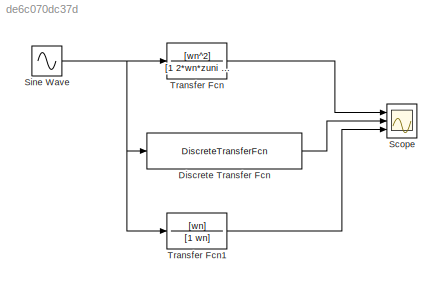
MODEL slx_de6c070dc37d
KIND model
CONFIG AbsTol = auto
CONFIG EnableMultiTasking = off
CONFIG FixedStep = 0.004
CONFIG MaxStep = auto
CONFIG MinStep = auto
CONFIG RelTol = 1e-3
CONFIG SampleTimeConstraint = Unconstrained
CONFIG Solver = FixedStepAuto
CONFIG SolverName = FixedStepAuto
CONFIG StartTime = 0.0
CONFIG StopTime = 10.0
BLOCK [DiscreteTransferFcn] Discrete Transfer Fcn
  Commented = on
  Denominator = ftz.den{1:end}
  InputPortMap = u0
  Numerator = ftz.num{1:end}
  Ports = [1, 1]
BLOCK [Scope] Scope
  Floating = off
  NumInputPorts = 3
  Ports = [3]
  ScopeSpecificationString = Simulink.scopes.TimeScopeBlockCfg('CurrentConfiguration', extmgr.ConfigurationSet(extmgr.Configuration('Core','General UI',true),extmgr.Configuration('Core','Source UI',true),extmgr.Configuration('Sources','WiredSimulink',true),extmgr.Configuration('Visuals','Time Domain',true,'SerializedDisplays',{struct('MinYLimReal','-1.15856','MaxYLimReal','1.15856','YLabelReal','','MinYLimMag','0.00000','MaxY...<+1443ch>
BLOCK [Sin] Sine Wave
  Frequency = 20
  Ports = [0, 1]
  SampleTime = 0
BLOCK [TransferFcn] Transfer Fcn
  Denominator = [1 2*wn*zuni wn^2]
  Numerator = [wn^2]
BLOCK [TransferFcn] Transfer Fcn1
  Denominator = [1 wn]
  Numerator = [wn]
LINE Discrete Transfer Fcn:1 -> Scope:2
NET Sine Wave:1 -> Discrete Transfer Fcn:1, Transfer Fcn1:1, Transfer Fcn:1
LINE Transfer Fcn1:1 -> Scope:3
LINE Transfer Fcn:1 -> Scope:1
note: NET lines group one-source signal fan-out (src -> all destinations, sorted); 1:1 wires keep LINE
